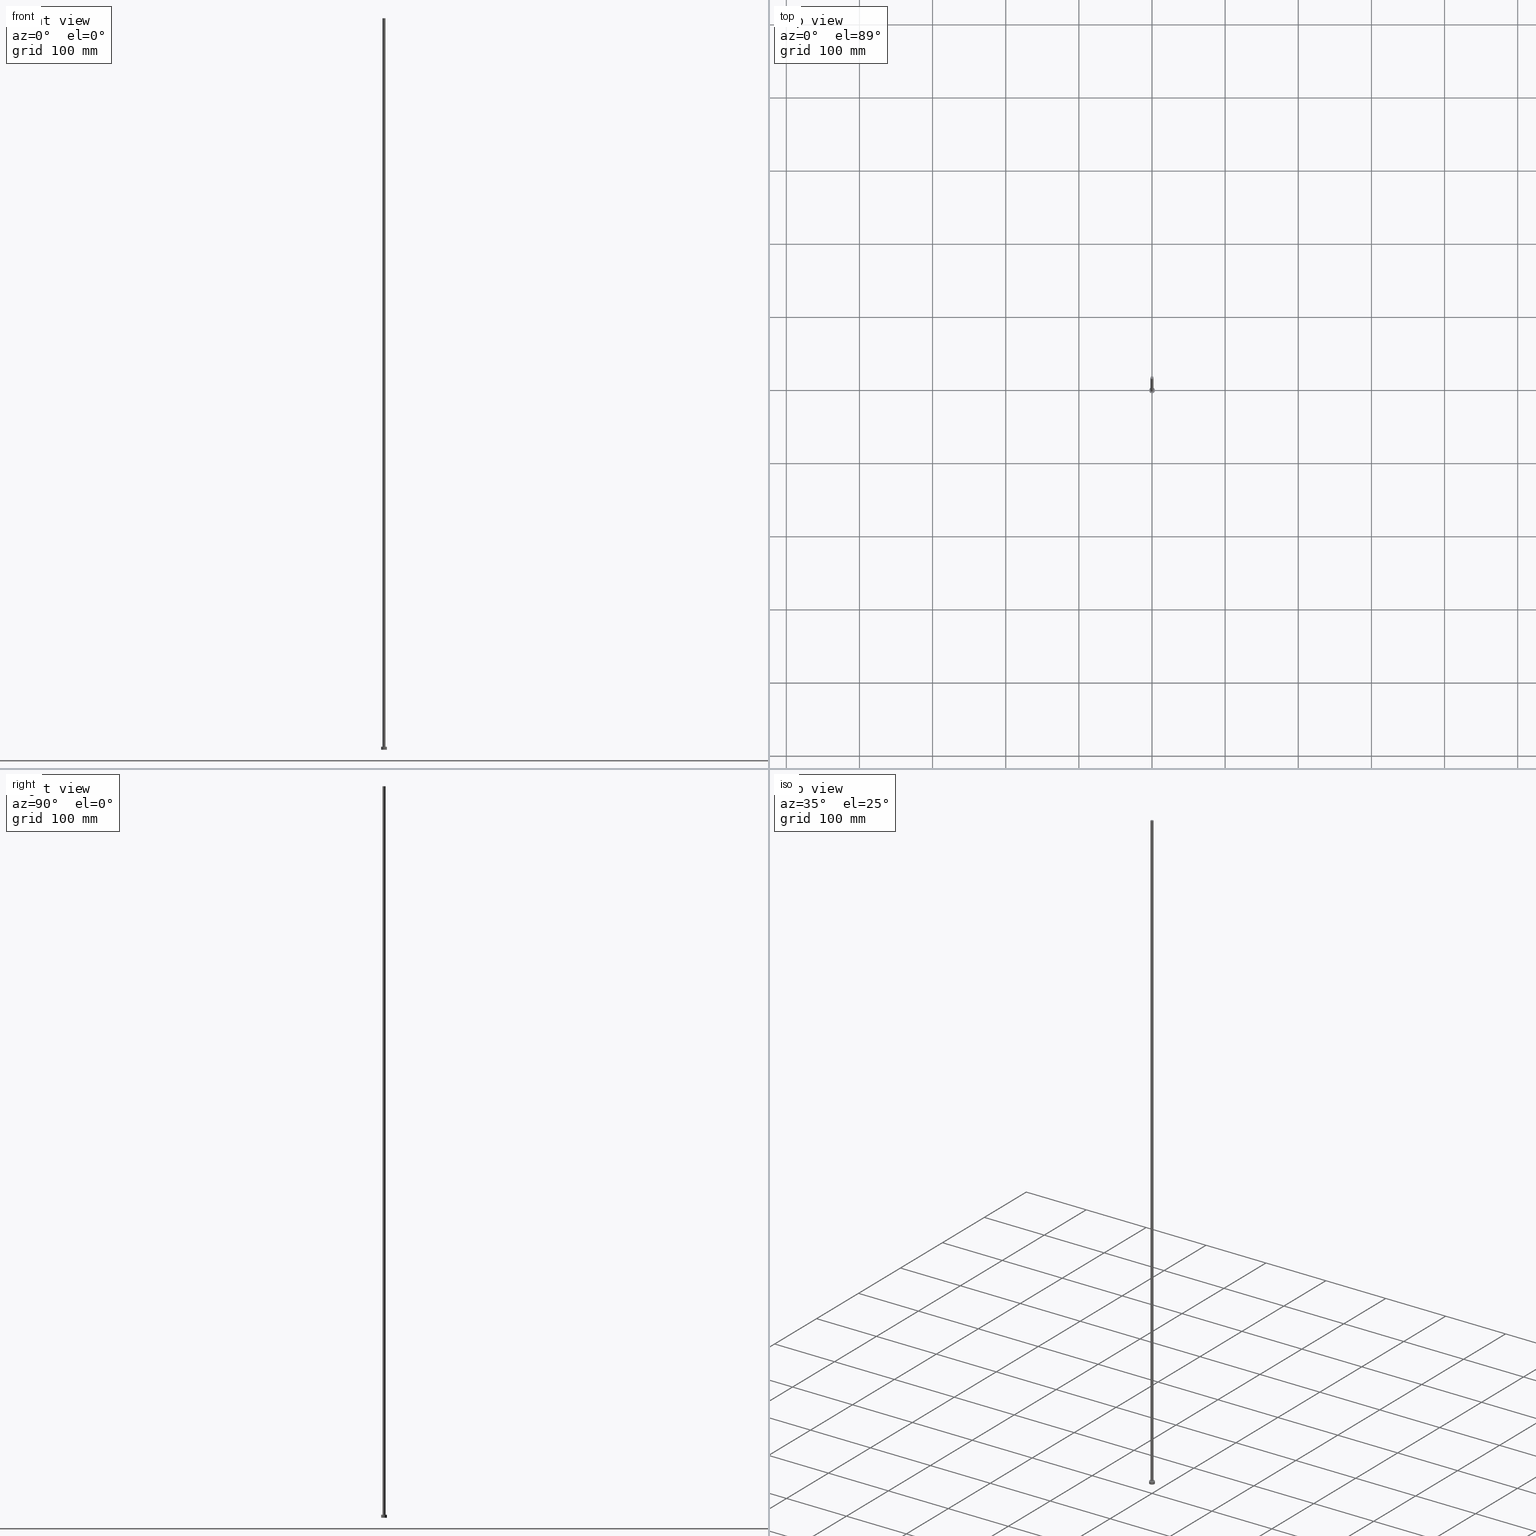
[diagram: canonical four-view strip — front | top / right | iso, engineering-drawing reading convention]
A machine part, canonical four-view strip (front | top / right | iso — engineering-drawing reading convention). The complete STEP part file that produces these views, byte-faithful:
ISO-10303-21;
HEADER;
FILE_DESCRIPTION (( 'STEP AP203' ),
    '1' );
FILE_NAME ('8321.STEP',
    '2023-02-13T16:35:29',
    ( '' ),
    ( '' ),
    'SwSTEP 2.0',
    'SolidWorks 2019',
    '' );
FILE_SCHEMA (( 'CONFIG_CONTROL_DESIGN' ));
ENDSEC;

DATA;
#1 = VERTEX_POINT ( 'NONE', #195 ) ;
#2 = APPROVAL ( #206, 'NEUR�EN�' ) ;
#3 = ADVANCED_FACE ( 'NONE', ( #158 ), #95, .T. ) ;
#4 = CYLINDRICAL_SURFACE ( 'NONE', #40, 2.000000000000000000 ) ;
#5 = DATE_AND_TIME ( #90, #118 ) ;
#6 = LOCAL_TIME ( 17, 35, 29.00000000000000000, #190 ) ;
#7 = DIRECTION ( 'NONE',  ( 0.000000000000000000, 0.000000000000000000, 1.000000000000000000 ) ) ;
#8 = DIRECTION ( 'NONE',  ( 1.000000000000000000, 0.000000000000000000, -0.000000000000000000 ) ) ;
#9 = CARTESIAN_POINT ( 'NONE',  ( 0.000000000000000000, 0.000000000000000000, 0.000000000000000000 ) ) ;
#10 = LOCAL_TIME ( 17, 35, 29.00000000000000000, #149 ) ;
#11 = DIRECTION ( 'NONE',  ( -0.000000000000000000, -0.000000000000000000, -1.000000000000000000 ) ) ;
#12 = DIRECTION ( 'NONE',  ( -0.000000000000000000, -0.000000000000000000, -1.000000000000000000 ) ) ;
#13 = AXIS2_PLACEMENT_3D ( 'NONE', #37, #103, #204 ) ;
#14 = PERSON_AND_ORGANIZATION ( #240, #71 ) ;
#15 = EDGE_CURVE ( 'NONE', #117, #136, #143, .T. ) ;
#16 = ORIENTED_EDGE ( 'NONE', *, *, #141, .F. ) ;
#17 = SHAPE_DEFINITION_REPRESENTATION ( #85, #20 ) ;
#18 = ORIENTED_EDGE ( 'NONE', *, *, #196, .T. ) ;
#19 = ADVANCED_FACE ( 'NONE', ( #97 ), #100, .T. ) ;
#20 = ADVANCED_BREP_SHAPE_REPRESENTATION ( '8321', ( #133, #147 ), #31 ) ;
#21 = DATE_AND_TIME ( #116, #6 ) ;
#22 = AXIS2_PLACEMENT_3D ( 'NONE', #146, #107, #222 ) ;
#23 = PERSON_AND_ORGANIZATION ( #240, #71 ) ;
#24 = PERSON_AND_ORGANIZATION_ROLE ( 'classification_officer' ) ;
#25 = VERTEX_POINT ( 'NONE', #242 ) ;
#26 = ORIENTED_EDGE ( 'NONE', *, *, #137, .F. ) ;
#27 = AXIS2_PLACEMENT_3D ( 'NONE', #81, #7, #109 ) ;
#28 = ORIENTED_EDGE ( 'NONE', *, *, #212, .T. ) ;
#29 = ORIENTED_EDGE ( 'NONE', *, *, #178, .F. ) ;
#30 = ADVANCED_FACE ( 'NONE', ( #175 ), #4, .T. ) ;
#31 =( GEOMETRIC_REPRESENTATION_CONTEXT ( 3 ) GLOBAL_UNCERTAINTY_ASSIGNED_CONTEXT ( ( #47 ) ) GLOBAL_UNIT_ASSIGNED_CONTEXT ( ( #192, #191, #228 ) ) REPRESENTATION_CONTEXT ( 'NONE', 'WORKASPACE' ) );
#32 = DIRECTION ( 'NONE',  ( 0.000000000000000000, 0.000000000000000000, 1.000000000000000000 ) ) ;
#33 = PLANE ( 'NONE',  #82 ) ;
#34 = AXIS2_PLACEMENT_3D ( 'NONE', #66, #221, #8 ) ;
#35 = DIRECTION ( 'NONE',  ( -0.000000000000000000, -0.000000000000000000, -1.000000000000000000 ) ) ;
#36 = APPLICATION_CONTEXT ( 'configuration controlled 3d designs of mechanical parts and assemblies' ) ;
#37 = CARTESIAN_POINT ( 'NONE',  ( 0.000000000000000000, 0.000000000000000000, 4.000000000000000000 ) ) ;
#38 = CC_DESIGN_PERSON_AND_ORGANIZATION_ASSIGNMENT ( #154, #58, ( #156 ) ) ;
#39 = APPROVAL_DATE_TIME ( #5, #208 ) ;
#40 = AXIS2_PLACEMENT_3D ( 'NONE', #74, #159, #65 ) ;
#41 = APPROVAL_ROLE ( '' ) ;
#42 = PERSON_AND_ORGANIZATION ( #240, #71 ) ;
#43 = PRODUCT_DEFINITION_FORMATION_WITH_SPECIFIED_SOURCE ( 'LIBOVOLN�', '', #156, .NOT_KNOWN. ) ;
#44 = PERSON_AND_ORGANIZATION ( #240, #71 ) ;
#45 = ORIENTED_EDGE ( 'NONE', *, *, #15, .F. ) ;
#46 = EDGE_LOOP ( 'NONE', ( #75, #252 ) ) ;
#47 = UNCERTAINTY_MEASURE_WITH_UNIT (LENGTH_MEASURE( 1.000000000000000082E-05 ), #192, 'distance_accuracy_value', 'NONE');
#48 = CARTESIAN_POINT ( 'NONE',  ( -2.000000000000000000, 0.000000000000000000, 1000.000000000000000 ) ) ;
#49 = EDGE_CURVE ( 'NONE', #117, #157, #202, .T. ) ;
#50 = CYLINDRICAL_SURFACE ( 'NONE', #139, 2.000000000000000000 ) ;
#51 = LOCAL_TIME ( 17, 35, 29.00000000000000000, #188 ) ;
#52 = LINE ( 'NONE', #186, #162 ) ;
#53 = DIRECTION ( 'NONE',  ( -1.000000000000000000, 0.000000000000000000, 0.000000000000000000 ) ) ;
#54 = EDGE_CURVE ( 'NONE', #1, #157, #78, .T. ) ;
#55 = CARTESIAN_POINT ( 'NONE',  ( 0.000000000000000000, 0.000000000000000000, 4.000000000000000000 ) ) ;
#56 = EDGE_CURVE ( 'NONE', #136, #117, #199, .T. ) ;
#57 = DIRECTION ( 'NONE',  ( 0.000000000000000000, 0.000000000000000000, 1.000000000000000000 ) ) ;
#58 = PERSON_AND_ORGANIZATION_ROLE ( 'design_owner' ) ;
#59 = APPROVAL_ROLE ( '' ) ;
#60 = EDGE_LOOP ( 'NONE', ( #68, #235, #217, #241 ) ) ;
#61 = CC_DESIGN_PERSON_AND_ORGANIZATION_ASSIGNMENT ( #44, #169, ( #101 ) ) ;
#62 = CARTESIAN_POINT ( 'NONE',  ( 0.000000000000000000, 0.000000000000000000, 4.000000000000000000 ) ) ;
#63 = CARTESIAN_POINT ( 'NONE',  ( -4.000000000000000000, 0.000000000000000000, 4.000000000000000000 ) ) ;
#64 = DIRECTION ( 'NONE',  ( -1.000000000000000000, 0.000000000000000000, 0.000000000000000000 ) ) ;
#65 = DIRECTION ( 'NONE',  ( -1.000000000000000000, 0.000000000000000000, 0.000000000000000000 ) ) ;
#66 = CARTESIAN_POINT ( 'NONE',  ( 0.000000000000000000, 0.000000000000000000, 0.000000000000000000 ) ) ;
#67 = DATE_AND_TIME ( #96, #51 ) ;
#68 = ORIENTED_EDGE ( 'NONE', *, *, #212, .F. ) ;
#69 = ORIENTED_EDGE ( 'NONE', *, *, #54, .F. ) ;
#70 = EDGE_LOOP ( 'NONE', ( #152, #28, #215, #16 ) ) ;
#71 = ORGANIZATION ( 'NEUR�EN�', 'NEUR�EN�', '' ) ;
#72 = DIRECTION ( 'NONE',  ( 1.000000000000000000, 0.000000000000000000, 0.000000000000000000 ) ) ;
#73 = EDGE_CURVE ( 'NONE', #142, #25, #106, .T. ) ;
#74 = CARTESIAN_POINT ( 'NONE',  ( 0.000000000000000000, 0.000000000000000000, 1000.000000000000000 ) ) ;
#75 = ORIENTED_EDGE ( 'NONE', *, *, #15, .T. ) ;
#76 = CARTESIAN_POINT ( 'NONE',  ( 0.000000000000000000, 0.000000000000000000, 1000.000000000000000 ) ) ;
#77 = CARTESIAN_POINT ( 'NONE',  ( 0.000000000000000000, 0.000000000000000000, 4.000000000000000000 ) ) ;
#78 = CIRCLE ( 'NONE', #173, 2.000000000000000000 ) ;
#79 = CARTESIAN_POINT ( 'NONE',  ( -4.000000000000000000, 0.000000000000000000, 0.000000000000000000 ) ) ;
#80 = FACE_OUTER_BOUND ( 'NONE', #193, .T. ) ;
#81 = CARTESIAN_POINT ( 'NONE',  ( 0.000000000000000000, 0.000000000000000000, 4.000000000000000000 ) ) ;
#82 = AXIS2_PLACEMENT_3D ( 'NONE', #62, #32, #145 ) ;
#83 = FACE_OUTER_BOUND ( 'NONE', #91, .T. ) ;
#84 = DIRECTION ( 'NONE',  ( 1.000000000000000000, 0.000000000000000000, 0.000000000000000000 ) ) ;
#85 = PRODUCT_DEFINITION_SHAPE ( 'NONE', 'NONE',  #101 ) ;
#86 = APPROVAL_STATUS ( 'not_yet_approved' ) ;
#87 = CC_DESIGN_SECURITY_CLASSIFICATION ( #102, ( #43 ) ) ;
#88 = EDGE_LOOP ( 'NONE', ( #209, #18, #174, #140 ) ) ;
#89 = CC_DESIGN_PERSON_AND_ORGANIZATION_ASSIGNMENT ( #42, #111, ( #43 ) ) ;
#90 = CALENDAR_DATE ( 2023, 13, 2 ) ;
#91 = EDGE_LOOP ( 'NONE', ( #216, #132 ) ) ;
#92 = ADVANCED_FACE ( 'NONE', ( #148 ), #223, .T. ) ;
#93 = PERSON_AND_ORGANIZATION_ROLE ( 'design_supplier' ) ;
#94 = CC_DESIGN_APPROVAL ( #2, ( #102 ) ) ;
#95 = CYLINDRICAL_SURFACE ( 'NONE', #187, 4.000000000000000000 ) ;
#96 = CALENDAR_DATE ( 2023, 13, 2 ) ;
#97 = FACE_OUTER_BOUND ( 'NONE', #46, .T. ) ;
#98 = CARTESIAN_POINT ( 'NONE',  ( 0.000000000000000000, 0.000000000000000000, 4.000000000000000000 ) ) ;
#99 = LOCAL_TIME ( 17, 35, 29.00000000000000000, #113 ) ;
#100 = PLANE ( 'NONE',  #194 ) ;
#101 = PRODUCT_DEFINITION ( 'NEZN�M�', '', #43, #122 ) ;
#102 = SECURITY_CLASSIFICATION ( '', '', #171 ) ;
#103 = DIRECTION ( 'NONE',  ( 0.000000000000000000, 0.000000000000000000, 1.000000000000000000 ) ) ;
#104 = FACE_BOUND ( 'NONE', #230, .T. ) ;
#105 = EDGE_CURVE ( 'NONE', #170, #239, #225, .T. ) ;
#106 = CIRCLE ( 'NONE', #119, 4.000000000000000000 ) ;
#107 = DIRECTION ( 'NONE',  ( 0.000000000000000000, 0.000000000000000000, 1.000000000000000000 ) ) ;
#108 = CC_DESIGN_DATE_AND_TIME_ASSIGNMENT ( #67, #150, ( #102 ) ) ;
#109 = DIRECTION ( 'NONE',  ( 1.000000000000000000, 0.000000000000000000, 0.000000000000000000 ) ) ;
#110 = DIRECTION ( 'NONE',  ( -0.000000000000000000, -0.000000000000000000, -1.000000000000000000 ) ) ;
#111 = PERSON_AND_ORGANIZATION_ROLE ( 'creator' ) ;
#112 = CALENDAR_DATE ( 2023, 13, 2 ) ;
#113 = COORDINATED_UNIVERSAL_TIME_OFFSET ( 1, 0, .AHEAD. ) ;
#114 = PERSON_AND_ORGANIZATION ( #240, #71 ) ;
#115 = AXIS2_PLACEMENT_3D ( 'NONE', #55, #12, #64 ) ;
#116 = CALENDAR_DATE ( 2023, 13, 2 ) ;
#117 = VERTEX_POINT ( 'NONE', #127 ) ;
#118 = LOCAL_TIME ( 17, 35, 29.00000000000000000, #254 ) ;
#119 = AXIS2_PLACEMENT_3D ( 'NONE', #200, #166, #248 ) ;
#120 = VECTOR ( 'NONE', #110, 1000.000000000000000 ) ;
#121 = DIRECTION ( 'NONE',  ( 1.000000000000000000, 0.000000000000000000, 0.000000000000000000 ) ) ;
#122 = DESIGN_CONTEXT ( 'detailed design', #36, 'design' ) ;
#123 = CARTESIAN_POINT ( 'NONE',  ( 0.000000000000000000, 0.000000000000000000, 1000.000000000000000 ) ) ;
#124 = CC_DESIGN_DATE_AND_TIME_ASSIGNMENT ( #21, #205, ( #101 ) ) ;
#125 = CC_DESIGN_APPROVAL ( #229, ( #101 ) ) ;
#126 = VECTOR ( 'NONE', #11, 1000.000000000000000 ) ;
#127 = CARTESIAN_POINT ( 'NONE',  ( -2.000000000000000000, 0.000000000000000000, 1000.000000000000000 ) ) ;
#128 = CARTESIAN_POINT ( 'NONE',  ( 4.000000000000000000, 4.898587196589412829E-16, 4.000000000000000000 ) ) ;
#129 = CIRCLE ( 'NONE', #155, 4.000000000000000000 ) ;
#130 = DATE_AND_TIME ( #255, #99 ) ;
#131 = EDGE_LOOP ( 'NONE', ( #26, #211 ) ) ;
#132 = ORIENTED_EDGE ( 'NONE', *, *, #151, .T. ) ;
#133 = MANIFOLD_SOLID_BREP ( 'P�idat vysunut�m3', #218 ) ;
#134 = PERSON_AND_ORGANIZATION ( #240, #71 ) ;
#135 = CIRCLE ( 'NONE', #13, 2.000000000000000000 ) ;
#136 = VERTEX_POINT ( 'NONE', #163 ) ;
#137 = EDGE_CURVE ( 'NONE', #239, #170, #129, .T. ) ;
#138 = DIRECTION ( 'NONE',  ( 0.000000000000000000, 0.000000000000000000, 1.000000000000000000 ) ) ;
#139 = AXIS2_PLACEMENT_3D ( 'NONE', #123, #247, #53 ) ;
#140 = ORIENTED_EDGE ( 'NONE', *, *, #49, .F. ) ;
#141 = EDGE_CURVE ( 'NONE', #142, #239, #52, .T. ) ;
#142 = VERTEX_POINT ( 'NONE', #63 ) ;
#143 = CIRCLE ( 'NONE', #237, 2.000000000000000000 ) ;
#144 = DIRECTION ( 'NONE',  ( 0.000000000000000000, 0.000000000000000000, 1.000000000000000000 ) ) ;
#145 = DIRECTION ( 'NONE',  ( 1.000000000000000000, 0.000000000000000000, -0.000000000000000000 ) ) ;
#146 = CARTESIAN_POINT ( 'NONE',  ( 0.000000000000000000, 0.000000000000000000, 1000.000000000000000 ) ) ;
#147 = AXIS2_PLACEMENT_3D ( 'NONE', #233, #57, #84 ) ;
#148 = FACE_OUTER_BOUND ( 'NONE', #60, .T. ) ;
#149 = COORDINATED_UNIVERSAL_TIME_OFFSET ( 1, 0, .AHEAD. ) ;
#150 = DATE_TIME_ROLE ( 'classification_date' ) ;
#151 = EDGE_CURVE ( 'NONE', #25, #142, #253, .T. ) ;
#152 = ORIENTED_EDGE ( 'NONE', *, *, #151, .F. ) ;
#153 = ORIENTED_EDGE ( 'NONE', *, *, #178, .T. ) ;
#154 = PERSON_AND_ORGANIZATION ( #240, #71 ) ;
#155 = AXIS2_PLACEMENT_3D ( 'NONE', #9, #144, #165 ) ;
#156 = PRODUCT ( '8321', '8321', '', ( #231 ) ) ;
#157 = VERTEX_POINT ( 'NONE', #244 ) ;
#158 = FACE_OUTER_BOUND ( 'NONE', #70, .T. ) ;
#159 = DIRECTION ( 'NONE',  ( -0.000000000000000000, -0.000000000000000000, -1.000000000000000000 ) ) ;
#160 = ADVANCED_FACE ( 'NONE', ( #104, #83 ), #33, .T. ) ;
#161 = ORIENTED_EDGE ( 'NONE', *, *, #196, .F. ) ;
#162 = VECTOR ( 'NONE', #35, 1000.000000000000000 ) ;
#163 = CARTESIAN_POINT ( 'NONE',  ( 2.000000000000000000, 2.449293598294706414E-16, 1000.000000000000000 ) ) ;
#164 = PRODUCT_RELATED_PRODUCT_CATEGORY ( 'detail', '', ( #156 ) ) ;
#165 = DIRECTION ( 'NONE',  ( 1.000000000000000000, 0.000000000000000000, 0.000000000000000000 ) ) ;
#166 = DIRECTION ( 'NONE',  ( 0.000000000000000000, 0.000000000000000000, 1.000000000000000000 ) ) ;
#167 = FACE_OUTER_BOUND ( 'NONE', #131, .T. ) ;
#168 = PERSON_AND_ORGANIZATION ( #240, #71 ) ;
#169 = PERSON_AND_ORGANIZATION_ROLE ( 'creator' ) ;
#170 = VERTEX_POINT ( 'NONE', #226 ) ;
#171 = SECURITY_CLASSIFICATION_LEVEL ( 'unclassified' ) ;
#172 = CC_DESIGN_PERSON_AND_ORGANIZATION_ASSIGNMENT ( #134, #24, ( #102 ) ) ;
#173 = AXIS2_PLACEMENT_3D ( 'NONE', #77, #180, #121 ) ;
#174 = ORIENTED_EDGE ( 'NONE', *, *, #54, .T. ) ;
#175 = FACE_OUTER_BOUND ( 'NONE', #88, .T. ) ;
#176 = APPROVAL_STATUS ( 'not_yet_approved' ) ;
#177 = DIRECTION ( 'NONE',  ( -0.000000000000000000, -0.000000000000000000, -1.000000000000000000 ) ) ;
#178 = EDGE_CURVE ( 'NONE', #157, #1, #135, .T. ) ;
#179 = DIRECTION ( 'NONE',  ( -1.000000000000000000, 0.000000000000000000, 0.000000000000000000 ) ) ;
#180 = DIRECTION ( 'NONE',  ( 0.000000000000000000, 0.000000000000000000, 1.000000000000000000 ) ) ;
#181 = ADVANCED_FACE ( 'NONE', ( #80 ), #50, .T. ) ;
#182 = CC_DESIGN_APPROVAL ( #208, ( #43 ) ) ;
#183 = LINE ( 'NONE', #246, #234 ) ;
#184 = DIRECTION ( 'NONE',  ( 1.000000000000000000, 0.000000000000000000, 0.000000000000000000 ) ) ;
#185 = LINE ( 'NONE', #128, #120 ) ;
#186 = CARTESIAN_POINT ( 'NONE',  ( -4.000000000000000000, 0.000000000000000000, 4.000000000000000000 ) ) ;
#187 = AXIS2_PLACEMENT_3D ( 'NONE', #98, #177, #179 ) ;
#188 = COORDINATED_UNIVERSAL_TIME_OFFSET ( 1, 0, .AHEAD. ) ;
#189 = APPROVAL_DATE_TIME ( #227, #2 ) ;
#190 = COORDINATED_UNIVERSAL_TIME_OFFSET ( 1, 0, .AHEAD. ) ;
#191 =( NAMED_UNIT ( * ) PLANE_ANGLE_UNIT ( ) SI_UNIT ( $, .RADIAN. ) );
#192 =( LENGTH_UNIT ( ) NAMED_UNIT ( * ) SI_UNIT ( .MILLI., .METRE. ) );
#193 = EDGE_LOOP ( 'NONE', ( #161, #45, #197, #153 ) ) ;
#194 = AXIS2_PLACEMENT_3D ( 'NONE', #76, #198, #236 ) ;
#195 = CARTESIAN_POINT ( 'NONE',  ( 2.000000000000000000, 2.449293598294706414E-16, 4.000000000000000000 ) ) ;
#196 = EDGE_CURVE ( 'NONE', #136, #1, #183, .T. ) ;
#197 = ORIENTED_EDGE ( 'NONE', *, *, #49, .T. ) ;
#198 = DIRECTION ( 'NONE',  ( 0.000000000000000000, 0.000000000000000000, 1.000000000000000000 ) ) ;
#199 = CIRCLE ( 'NONE', #22, 2.000000000000000000 ) ;
#200 = CARTESIAN_POINT ( 'NONE',  ( 0.000000000000000000, 0.000000000000000000, 4.000000000000000000 ) ) ;
#201 = CARTESIAN_POINT ( 'NONE',  ( 0.000000000000000000, 0.000000000000000000, 0.000000000000000000 ) ) ;
#202 = LINE ( 'NONE', #48, #126 ) ;
#203 = DIRECTION ( 'NONE',  ( -0.000000000000000000, -0.000000000000000000, -1.000000000000000000 ) ) ;
#204 = DIRECTION ( 'NONE',  ( 1.000000000000000000, 0.000000000000000000, 0.000000000000000000 ) ) ;
#205 = DATE_TIME_ROLE ( 'creation_date' ) ;
#206 = APPROVAL_STATUS ( 'not_yet_approved' ) ;
#207 = APPLICATION_PROTOCOL_DEFINITION ( 'international standard', 'config_control_design', 1994, #36 ) ;
#208 = APPROVAL ( #86, 'NEUR�EN�' ) ;
#209 = ORIENTED_EDGE ( 'NONE', *, *, #56, .F. ) ;
#210 = APPROVAL_DATE_TIME ( #130, #229 ) ;
#211 = ORIENTED_EDGE ( 'NONE', *, *, #105, .F. ) ;
#212 = EDGE_CURVE ( 'NONE', #25, #170, #185, .T. ) ;
#213 = APPROVAL_PERSON_ORGANIZATION ( #168, #229, #59 ) ;
#214 = APPLICATION_PROTOCOL_DEFINITION ( 'international standard', 'config_control_design', 1994, #249 ) ;
#215 = ORIENTED_EDGE ( 'NONE', *, *, #105, .T. ) ;
#216 = ORIENTED_EDGE ( 'NONE', *, *, #73, .T. ) ;
#217 = ORIENTED_EDGE ( 'NONE', *, *, #141, .T. ) ;
#218 = CLOSED_SHELL ( 'NONE', ( #30, #3, #92, #160, #232, #181, #19 ) ) ;
#219 = APPROVAL_PERSON_ORGANIZATION ( #14, #2, #41 ) ;
#220 = CARTESIAN_POINT ( 'NONE',  ( 0.000000000000000000, 0.000000000000000000, 1000.000000000000000 ) ) ;
#221 = DIRECTION ( 'NONE',  ( 0.000000000000000000, 0.000000000000000000, 1.000000000000000000 ) ) ;
#222 = DIRECTION ( 'NONE',  ( 1.000000000000000000, 0.000000000000000000, 0.000000000000000000 ) ) ;
#223 = CYLINDRICAL_SURFACE ( 'NONE', #115, 4.000000000000000000 ) ;
#224 = DIRECTION ( 'NONE',  ( 0.000000000000000000, 0.000000000000000000, 1.000000000000000000 ) ) ;
#225 = CIRCLE ( 'NONE', #245, 4.000000000000000000 ) ;
#226 = CARTESIAN_POINT ( 'NONE',  ( 4.000000000000000000, 4.898587196589412829E-16, 0.000000000000000000 ) ) ;
#227 = DATE_AND_TIME ( #112, #10 ) ;
#228 =( NAMED_UNIT ( * ) SI_UNIT ( $, .STERADIAN. ) SOLID_ANGLE_UNIT ( ) );
#229 = APPROVAL ( #176, 'NEUR�EN�' ) ;
#230 = EDGE_LOOP ( 'NONE', ( #29, #69 ) ) ;
#231 = MECHANICAL_CONTEXT ( 'NONE', #249, 'mechanical' ) ;
#232 = ADVANCED_FACE ( 'NONE', ( #167 ), #250, .F. ) ;
#233 = CARTESIAN_POINT ( 'NONE',  ( 0.000000000000000000, 0.000000000000000000, 0.000000000000000000 ) ) ;
#234 = VECTOR ( 'NONE', #203, 1000.000000000000000 ) ;
#235 = ORIENTED_EDGE ( 'NONE', *, *, #73, .F. ) ;
#236 = DIRECTION ( 'NONE',  ( 1.000000000000000000, 0.000000000000000000, -0.000000000000000000 ) ) ;
#237 = AXIS2_PLACEMENT_3D ( 'NONE', #220, #138, #72 ) ;
#238 = CC_DESIGN_PERSON_AND_ORGANIZATION_ASSIGNMENT ( #114, #93, ( #43 ) ) ;
#239 = VERTEX_POINT ( 'NONE', #79 ) ;
#240 = PERSON ( 'NEUR�EN�', 'NEUR�EN�', 'NEUR�EN�', ('NEUR�EN�'), ('NEUR�EN�'), ('NEUR�EN�') ) ;
#241 = ORIENTED_EDGE ( 'NONE', *, *, #137, .T. ) ;
#242 = CARTESIAN_POINT ( 'NONE',  ( 4.000000000000000000, 4.898587196589412829E-16, 4.000000000000000000 ) ) ;
#243 = APPROVAL_PERSON_ORGANIZATION ( #23, #208, #251 ) ;
#244 = CARTESIAN_POINT ( 'NONE',  ( -2.000000000000000000, 0.000000000000000000, 4.000000000000000000 ) ) ;
#245 = AXIS2_PLACEMENT_3D ( 'NONE', #201, #224, #184 ) ;
#246 = CARTESIAN_POINT ( 'NONE',  ( 2.000000000000000000, 2.449293598294706414E-16, 1000.000000000000000 ) ) ;
#247 = DIRECTION ( 'NONE',  ( -0.000000000000000000, -0.000000000000000000, -1.000000000000000000 ) ) ;
#248 = DIRECTION ( 'NONE',  ( 1.000000000000000000, 0.000000000000000000, 0.000000000000000000 ) ) ;
#249 = APPLICATION_CONTEXT ( 'configuration controlled 3d designs of mechanical parts and assemblies' ) ;
#250 = PLANE ( 'NONE',  #34 ) ;
#251 = APPROVAL_ROLE ( '' ) ;
#252 = ORIENTED_EDGE ( 'NONE', *, *, #56, .T. ) ;
#253 = CIRCLE ( 'NONE', #27, 4.000000000000000000 ) ;
#254 = COORDINATED_UNIVERSAL_TIME_OFFSET ( 1, 0, .AHEAD. ) ;
#255 = CALENDAR_DATE ( 2023, 13, 2 ) ;
ENDSEC;
END-ISO-10303-21;
